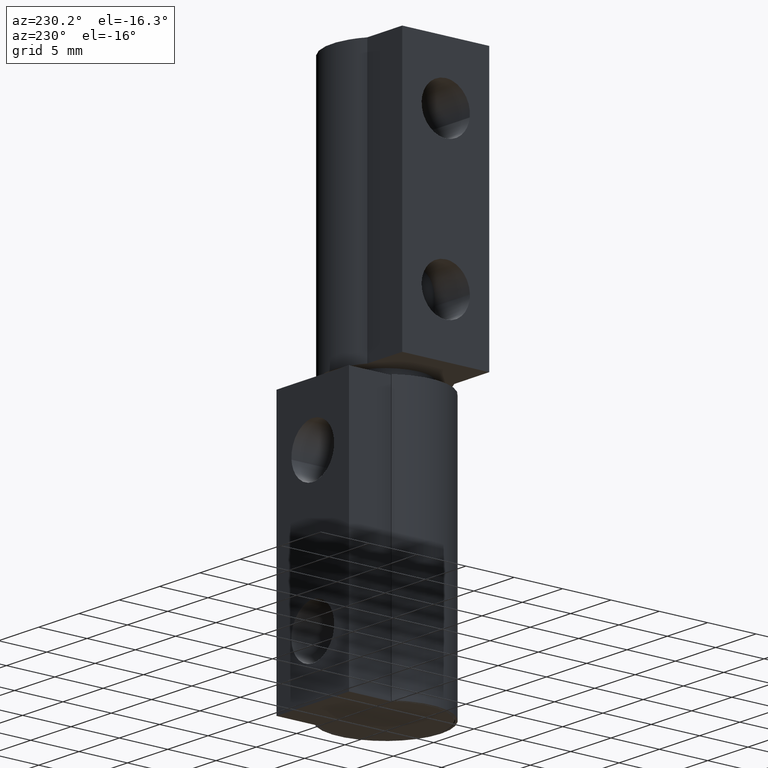
[diagram: clean part render]
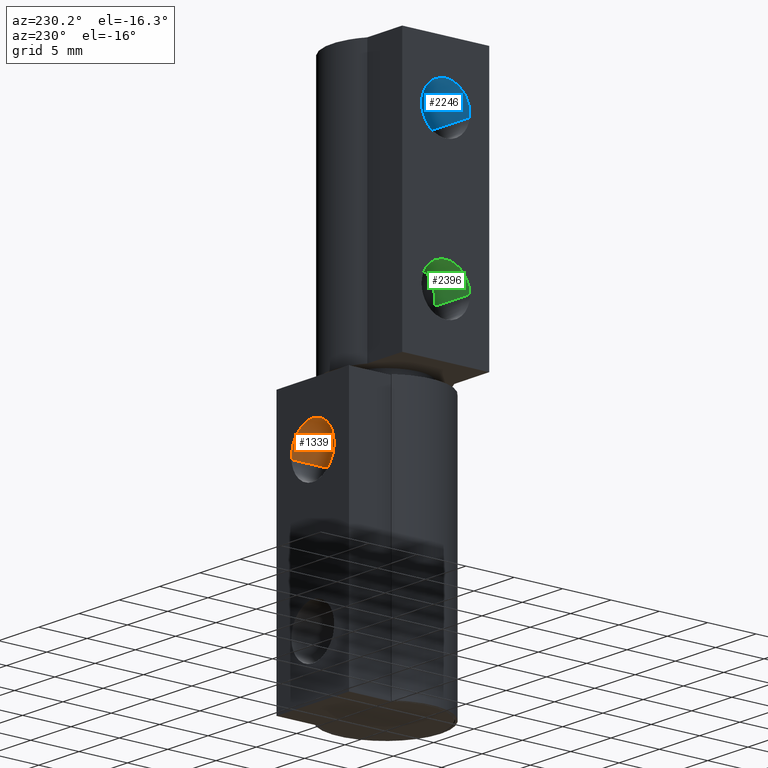
[diagram: same view with three faces highlighted in distinct colors, each labeled with its STEP entity id]
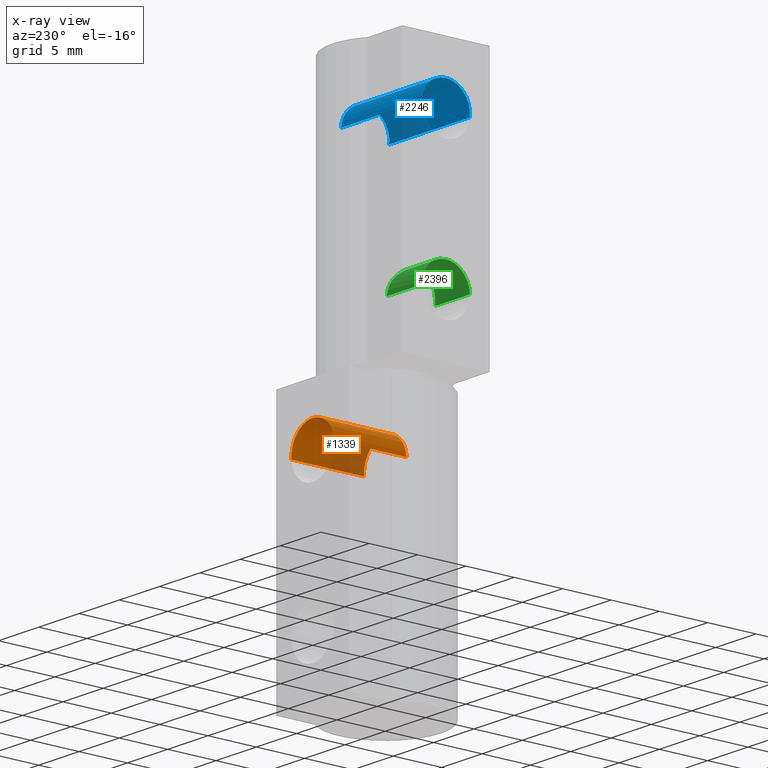
[diagram: x-ray of the same camera — body ghosted, the three highlighted faces saturated]
A machine part, auxiliary view with three faces highlighted in distinct colors.
The next image is the same camera in x-ray (body ghosted, the three faces saturated) — at least one of them is partly hidden behind the body in this view.
Their STEP definitions:

[orange] entity #1339 — the highlighted face is a freeform B-spline surface patch.
#1241=CARTESIAN_POINT('',(-2.641830934392788,-0.187500008905773,21.207917601118439));
#1242=CARTESIAN_POINT('',(-2.433914330713998,-0.187500008905773,23.849748535511228));
#1243=CARTESIAN_POINT('',(0.207916603678791,-0.187500008905773,23.641831931832439));
#1244=CARTESIAN_POINT('',(2.849747538071578,-0.187500008905773,23.433915328153656));
#1245=CARTESIAN_POINT('',(2.641830934392788,-0.187500008905773,20.792084393760859));
#1246=CARTESIAN_POINT('',(-2.641830934392788,7.692187865359309,21.207917601118439));
#1247=CARTESIAN_POINT('',(-2.433914330713998,7.692187865359308,23.849748535511228));
#1248=CARTESIAN_POINT('',(0.207916603678791,7.692187865359309,23.641831931832439));
#1249=CARTESIAN_POINT('',(2.849747538071578,7.692187865359308,23.433915328153656));
#1250=CARTESIAN_POINT('',(2.641830934392788,7.692187865359309,20.792084393760859));
#1258=(BOUNDED_SURFACE()B_SPLINE_SURFACE(2,1,((#1241,#1246),(#1242,#1247),(#1243,#1248),(#1244,#1249),(#1245,#1250)),.UNSPECIFIED.,.F.,.F.,.U.)B_SPLINE_SURFACE_WITH_KNOTS((3,2,3),(2,2),(0.0,4.390663761154806,8.781327522309612),(0.0,7.879687874265081),.UNSPECIFIED.)GEOMETRIC_REPRESENTATION_ITEM()RATIONAL_B_SPLINE_SURFACE(((1.0,1.0),(0.707106781186548,0.707106781186548),(1.0,1.0),(0.707106781186548,0.707106781186548),(1.0,1.0)))REPRESENTATION_ITEM('')SURFACE());
#1259=CARTESIAN_POINT('',(0.0,0.0,23.650000997439651));
#1260=VERTEX_POINT('',#1259);
#1261=CARTESIAN_POINT('',(-2.641830934385854,-2.498002E-016,21.207917601206560));
#1262=VERTEX_POINT('',#1261);
#1263=CARTESIAN_POINT('',(0.0,0.0,23.650000997439651));
#1264=CARTESIAN_POINT('',(-2.449634802730323,0.0,23.650000997439651));
#1265=CARTESIAN_POINT('',(-2.641830934385854,-2.498002E-016,21.207917601206560));
#1273=(BOUNDED_CURVE()B_SPLINE_CURVE(2,(#1263,#1264,#1265),.UNSPECIFIED.,.F.,.U.)B_SPLINE_CURVE_WITH_KNOTS((3,3),(0.0,0.236331300621331),.UNSPECIFIED.)CURVE()GEOMETRIC_REPRESENTATION_ITEM()RATIONAL_B_SPLINE_CURVE((1.0,0.723120658618595,0.969723356147949))REPRESENTATION_ITEM(''));
#1274=EDGE_CURVE('',#1260,#1262,#1273,.T.);
#1275=ORIENTED_EDGE('',*,*,#1274,.T.);
#1276=CARTESIAN_POINT('',(-2.641830934385853,7.500000356230891,21.207917601206560));
#1277=VERTEX_POINT('',#1276);
#1278=CARTESIAN_POINT('',(-2.641830934385854,-2.498002E-016,21.207917601206560));
#1279=CARTESIAN_POINT('',(-2.641830934385853,7.500000356230891,21.207917601206560));
#1280=QUASI_UNIFORM_CURVE('',1,(#1278,#1279),.UNSPECIFIED.,.F.,.U.);
#1281=EDGE_CURVE('',#1262,#1277,#1280,.T.);
#1282=ORIENTED_EDGE('',*,*,#1281,.T.);
#1283=CARTESIAN_POINT('',(0.0,7.500000356230890,23.650000997439651));
#1284=VERTEX_POINT('',#1283);
#1285=CARTESIAN_POINT('',(0.0,7.500000356230890,23.650000997439651));
#1286=CARTESIAN_POINT('',(-2.449634802730322,7.500000356230891,23.650000997439648));
#1287=CARTESIAN_POINT('',(-2.641830934385853,7.500000356230891,21.207917601206564));
#1295=(BOUNDED_CURVE()B_SPLINE_CURVE(2,(#1285,#1286,#1287),.UNSPECIFIED.,.F.,.U.)B_SPLINE_CURVE_WITH_KNOTS((3,3),(0.0,0.236331300621331),.UNSPECIFIED.)CURVE()GEOMETRIC_REPRESENTATION_ITEM()RATIONAL_B_SPLINE_CURVE((1.0,0.723120658618595,0.969723356147949))REPRESENTATION_ITEM(''));
#1296=EDGE_CURVE('',#1284,#1277,#1295,.T.);
#1297=ORIENTED_EDGE('',*,*,#1296,.F.);
#1298=CARTESIAN_POINT('',(2.641830934385853,7.500000356230890,20.792084393672742));
#1299=VERTEX_POINT('',#1298);
#1300=CARTESIAN_POINT('',(2.641830934385853,7.500000356230891,20.792084393672738));
#1301=CARTESIAN_POINT('',(2.650000000000000,7.500000356230890,20.895882213780798));
#1302=CARTESIAN_POINT('',(2.650000000000000,7.500000356230890,21.000000997439649));
#1303=CARTESIAN_POINT('',(2.650000000000000,7.500000356230891,23.650000997439651));
#1304=CARTESIAN_POINT('',(0.0,7.500000356230890,23.650000997439651));
#1312=(BOUNDED_CURVE()B_SPLINE_CURVE(2,(#1300,#1301,#1302,#1303,#1304),.UNSPECIFIED.,.F.,.U.)B_SPLINE_CURVE_WITH_KNOTS((3,2,3),(0.736331300621331,0.750000000000000,1.0),.UNSPECIFIED.)CURVE()GEOMETRIC_REPRESENTATION_ITEM()RATIONAL_B_SPLINE_CURVE((0.969723356147949,0.983986122567952,1.0,0.707106781186548,1.0))REPRESENTATION_ITEM(''));
#1313=EDGE_CURVE('',#1299,#1284,#1312,.T.);
#1314=ORIENTED_EDGE('',*,*,#1313,.F.);
#1315=CARTESIAN_POINT('',(2.641830934385853,-2.498002E-016,20.792084393672742));
#1316=VERTEX_POINT('',#1315);
#1317=CARTESIAN_POINT('',(2.641830934385853,-2.498002E-016,20.792084393672742));
#1318=CARTESIAN_POINT('',(2.641830934385853,7.500000356230890,20.792084393672742));
#1319=QUASI_UNIFORM_CURVE('',1,(#1317,#1318),.UNSPECIFIED.,.F.,.U.);
#1320=EDGE_CURVE('',#1316,#1299,#1319,.T.);
#1321=ORIENTED_EDGE('',*,*,#1320,.F.);
#1322=CARTESIAN_POINT('',(2.641830934385853,-2.498002E-016,20.792084393672742));
#1323=CARTESIAN_POINT('',(2.650000000000000,0.0,20.895882213780794));
#1324=CARTESIAN_POINT('',(2.650000000000000,0.0,21.000000997439649));
#1325=CARTESIAN_POINT('',(2.650000000000000,0.0,23.650000997439651));
#1326=CARTESIAN_POINT('',(0.0,0.0,23.650000997439651));
#1334=(BOUNDED_CURVE()B_SPLINE_CURVE(2,(#1322,#1323,#1324,#1325,#1326),.UNSPECIFIED.,.F.,.U.)B_SPLINE_CURVE_WITH_KNOTS((3,2,3),(0.736331300621331,0.750000000000000,1.0),.UNSPECIFIED.)CURVE()GEOMETRIC_REPRESENTATION_ITEM()RATIONAL_B_SPLINE_CURVE((0.969723356147949,0.983986122567953,1.0,0.707106781186548,1.0))REPRESENTATION_ITEM(''));
#1335=EDGE_CURVE('',#1316,#1260,#1334,.T.);
#1336=ORIENTED_EDGE('',*,*,#1335,.T.);
#1337=EDGE_LOOP('',(#1275,#1282,#1297,#1314,#1321,#1336));
#1338=FACE_OUTER_BOUND('',#1337,.T.);
#1339=ADVANCED_FACE('',(#1338),#1258,.F.);

[blue] entity #2246 — the highlighted face is a freeform B-spline surface patch.
#2144=CARTESIAN_POINT('',(2.749999768769136,-2.482561998383750,48.704916740721103));
#2145=CARTESIAN_POINT('',(2.749999768769137,-2.491007221096098,48.775965505768070));
#2146=CARTESIAN_POINT('',(2.749999768769136,-2.495375178529250,48.847380978525862));
#2147=CARTESIAN_POINT('',(2.749999768769136,-2.647996527366392,51.342717974580516));
#2148=CARTESIAN_POINT('',(2.749999768769136,-0.152659531311725,51.495339323417667));
#2149=CARTESIAN_POINT('',(2.749999768769136,2.342677464742941,51.647960672254811));
#2150=CARTESIAN_POINT('',(2.749999768769136,2.495298813580084,49.152623676200143));
#2151=CARTESIAN_POINT('',(-7.756250231230871,-2.482561998383750,48.704916740721103));
#2152=CARTESIAN_POINT('',(-7.756250231230869,-2.491007221096098,48.775965505768070));
#2153=CARTESIAN_POINT('',(-7.756250231230869,-2.495375178529250,48.847380978525862));
#2154=CARTESIAN_POINT('',(-7.756250231230869,-2.647996527366392,51.342717974580516));
#2155=CARTESIAN_POINT('',(-7.756250231230869,-0.152659531311725,51.495339323417667));
#2156=CARTESIAN_POINT('',(-7.756250231230869,2.342677464742941,51.647960672254811));
#2157=CARTESIAN_POINT('',(-7.756250231230869,2.495298813580084,49.152623676200143));
#2165=(BOUNDED_SURFACE()B_SPLINE_SURFACE(2,1,((#2144,#2151),(#2145,#2152),(#2146,#2153),(#2147,#2154),(#2148,#2155),(#2149,#2156),(#2150,#2157)),.UNSPECIFIED.,.F.,.F.,.U.)B_SPLINE_SURFACE_WITH_KNOTS((3,2,2,3),(2,2),(0.0,0.165685424949238,4.307821048680194,8.449956672411149),(0.0,10.506250000000010),.UNSPECIFIED.)GEOMETRIC_REPRESENTATION_ITEM()RATIONAL_B_SPLINE_SURFACE(((0.977505800795127,0.977505800795127),(0.988284271247462,0.988284271247462),(1.0,1.0),(0.707106781186548,0.707106781186548),(1.0,1.0),(0.707106781186548,0.707106781186548),(1.0,1.0)))REPRESENTATION_ITEM('')SURFACE());
#2166=CARTESIAN_POINT('',(2.499999768769135,-2.482561998375129,48.704916740648592));
#2167=VERTEX_POINT('',#2166);
#2168=CARTESIAN_POINT('',(2.499999768769135,-0.000038182474583,51.500002327362999));
#2169=VERTEX_POINT('',#2168);
#2170=CARTESIAN_POINT('',(2.499999768769136,-2.482561998375129,48.704916740648585));
#2171=CARTESIAN_POINT('',(2.499999768769135,-2.500038182474583,48.851942028159939));
#2172=CARTESIAN_POINT('',(2.499999768769135,-2.500038182474583,49.000002327362999));
#2173=CARTESIAN_POINT('',(2.499999768769136,-2.500038182474583,51.500002327363006));
#2174=CARTESIAN_POINT('',(2.499999768769135,-0.000038182474583,51.500002327362999));
#2182=(BOUNDED_CURVE()B_SPLINE_CURVE(2,(#2170,#2171,#2172,#2173,#2174),.UNSPECIFIED.,.F.,.U.)B_SPLINE_CURVE_WITH_KNOTS((3,2,3),(0.229562473505770,0.250000000000000,0.500000000000000),.UNSPECIFIED.)CURVE()GEOMETRIC_REPRESENTATION_ITEM()RATIONAL_B_SPLINE_CURVE((0.956026754168532,0.976055948322079,1.0,0.707106781186548,1.0))REPRESENTATION_ITEM(''));
#2183=EDGE_CURVE('',#2167,#2169,#2182,.T.);
#2184=ORIENTED_EDGE('',*,*,#2183,.F.);
#2185=CARTESIAN_POINT('',(-7.500000231230869,-2.482561998375129,48.704916740648592));
#2186=VERTEX_POINT('',#2185);
#2187=CARTESIAN_POINT('',(2.499999768769135,-2.482561998375129,48.704916740648592));
#2188=CARTESIAN_POINT('',(-7.500000231230869,-2.482561998375129,48.704916740648592));
#2189=QUASI_UNIFORM_CURVE('',1,(#2187,#2188),.UNSPECIFIED.,.F.,.U.);
#2190=EDGE_CURVE('',#2167,#2186,#2189,.T.);
#2191=ORIENTED_EDGE('',*,*,#2190,.T.);
#2192=CARTESIAN_POINT('',(-7.500000231230869,-0.000038182474583,51.500002327362999));
#2193=VERTEX_POINT('',#2192);
#2194=CARTESIAN_POINT('',(-7.500000231230869,-2.482561998375129,48.704916740648578));
#2195=CARTESIAN_POINT('',(-7.500000231230869,-2.500038182474584,48.851942028159939));
#2196=CARTESIAN_POINT('',(-7.500000231230869,-2.500038182474583,49.000002327362999));
#2197=CARTESIAN_POINT('',(-7.500000231230868,-2.500038182474583,51.500002327363006));
#2198=CARTESIAN_POINT('',(-7.500000231230869,-0.000038182474583,51.500002327362999));
#2206=(BOUNDED_CURVE()B_SPLINE_CURVE(2,(#2194,#2195,#2196,#2197,#2198),.UNSPECIFIED.,.F.,.U.)B_SPLINE_CURVE_WITH_KNOTS((3,2,3),(0.229562473505770,0.250000000000000,0.500000000000000),.UNSPECIFIED.)CURVE()GEOMETRIC_REPRESENTATION_ITEM()RATIONAL_B_SPLINE_CURVE((0.956026754168533,0.976055948322080,1.0,0.707106781186548,1.0))REPRESENTATION_ITEM(''));
#2207=EDGE_CURVE('',#2186,#2193,#2206,.T.);
#2208=ORIENTED_EDGE('',*,*,#2207,.T.);
#2209=CARTESIAN_POINT('',(-7.500000231230869,2.495298813570860,49.152623676350963));
#2210=VERTEX_POINT('',#2209);
#2211=CARTESIAN_POINT('',(-7.500000231230869,-0.000038182474583,51.500002327362999));
#2212=CARTESIAN_POINT('',(-7.500000231230869,2.351726984504866,51.500002327362992));
#2213=CARTESIAN_POINT('',(-7.500000231230869,2.495298813570861,49.152623676350963));
#2221=(BOUNDED_CURVE()B_SPLINE_CURVE(2,(#2211,#2212,#2213),.UNSPECIFIED.,.F.,.U.)B_SPLINE_CURVE_WITH_KNOTS((3,3),(0.500000000000000,0.739332962221113),.UNSPECIFIED.)CURVE()GEOMETRIC_REPRESENTATION_ITEM()RATIONAL_B_SPLINE_CURVE((1.0,0.719603993307600,0.976072041628504))REPRESENTATION_ITEM(''));
#2222=EDGE_CURVE('',#2193,#2210,#2221,.T.);
#2223=ORIENTED_EDGE('',*,*,#2222,.T.);
#2224=CARTESIAN_POINT('',(2.499999768769135,2.495298813570860,49.152623676350963));
#2225=VERTEX_POINT('',#2224);
#2226=CARTESIAN_POINT('',(2.499999768769135,2.495298813570860,49.152623676350963));
#2227=CARTESIAN_POINT('',(-7.500000231230869,2.495298813570860,49.152623676350963));
#2228=QUASI_UNIFORM_CURVE('',1,(#2226,#2227),.UNSPECIFIED.,.F.,.U.);
#2229=EDGE_CURVE('',#2225,#2210,#2228,.T.);
#2230=ORIENTED_EDGE('',*,*,#2229,.F.);
#2231=CARTESIAN_POINT('',(2.499999768769135,-0.000038182474583,51.500002327362999));
#2232=CARTESIAN_POINT('',(2.499999768769134,2.351726984504866,51.500002327362992));
#2233=CARTESIAN_POINT('',(2.499999768769136,2.495298813570861,49.152623676350963));
#2241=(BOUNDED_CURVE()B_SPLINE_CURVE(2,(#2231,#2232,#2233),.UNSPECIFIED.,.F.,.U.)B_SPLINE_CURVE_WITH_KNOTS((3,3),(0.500000000000000,0.739332962221113),.UNSPECIFIED.)CURVE()GEOMETRIC_REPRESENTATION_ITEM()RATIONAL_B_SPLINE_CURVE((1.0,0.719603993307600,0.976072041628504))REPRESENTATION_ITEM(''));
#2242=EDGE_CURVE('',#2169,#2225,#2241,.T.);
#2243=ORIENTED_EDGE('',*,*,#2242,.F.);
#2244=EDGE_LOOP('',(#2184,#2191,#2208,#2223,#2230,#2243));
#2245=FACE_OUTER_BOUND('',#2244,.T.);
#2246=ADVANCED_FACE('',(#2245),#2165,.F.);

[green] entity #2396 — the highlighted face is a freeform B-spline surface patch.
#1987=CARTESIAN_POINT('',(-3.187002784836064,2.499104689296310,33.934559968137172));
#1988=VERTEX_POINT('',#1987);
#2022=CARTESIAN_POINT('',(-3.186946049509110,-2.499180437548762,34.065444609893049));
#2023=VERTEX_POINT('',#2022);
#2063=CARTESIAN_POINT('',(-4.049999999820012,-0.000038182474581,36.500002327362999));
#2064=VERTEX_POINT('',#2063);
#2065=CARTESIAN_POINT('',(-4.049999999820012,-0.000038182474581,36.500002327362999));
#2066=CARTESIAN_POINT('',(-4.049998509802792,-0.169928168180444,36.500002325982507));
#2067=CARTESIAN_POINT('',(-4.039359150000169,-0.336198359740018,36.482871311699760));
#2068=CARTESIAN_POINT('',(-4.009012727810992,-0.580566979298215,36.433086163369843));
#2069=CARTESIAN_POINT('',(-3.996489822460951,-0.661177726384365,36.412442923393478));
#2070=CARTESIAN_POINT('',(-3.966803409316882,-0.820706298996053,36.362940981705222));
#2071=CARTESIAN_POINT('',(-3.949878105776212,-0.898330648448370,36.334475957806987));
#2072=CARTESIAN_POINT('',(-3.893875396574901,-1.124436779260122,36.238866525945021));
#2073=CARTESIAN_POINT('',(-3.849505477792553,-1.266601958108499,36.161501069874383));
#2074=CARTESIAN_POINT('',(-3.775287385465812,-1.467934719438934,36.025303752178147));
#2075=CARTESIAN_POINT('',(-3.749558036173027,-1.532251347758434,35.977041712221023));
#2076=CARTESIAN_POINT('',(-3.696953427216849,-1.655148424236541,35.875361564504772));
#2077=CARTESIAN_POINT('',(-3.670041046450113,-1.713823698886732,35.821878297429969));
#2078=CARTESIAN_POINT('',(-3.615606537661341,-1.825865158255103,35.709578004028288));
#2079=CARTESIAN_POINT('',(-3.588082547573704,-1.879231196863270,35.650761735661703));
#2080=CARTESIAN_POINT('',(-3.546830866499731,-1.955336310201288,35.558336155007147));
#2081=CARTESIAN_POINT('',(-3.533053675450608,-1.980102488808940,35.526746386269302));
#2082=CARTESIAN_POINT('',(-3.505821911451695,-2.027926888721423,35.462626556172943));
#2083=CARTESIAN_POINT('',(-3.492358475887103,-2.051005051129687,35.430080869338589));
#2084=CARTESIAN_POINT('',(-3.426026672447546,-2.162314969967441,35.264895557709671));
#2085=CARTESIAN_POINT('',(-3.376047115298407,-2.238461849450499,35.124990066205029));
#2086=CARTESIAN_POINT('',(-3.310652668167940,-2.333146418982781,34.901747019181450));
#2087=CARTESIAN_POINT('',(-3.290462947829369,-2.361422273731554,34.825082163689210));
#2088=CARTESIAN_POINT('',(-3.254353769266124,-2.410942582138402,34.666659546329100));
#2089=CARTESIAN_POINT('',(-3.238792222241626,-2.431705530817200,34.586414547596092));
#2090=CARTESIAN_POINT('',(-3.213349152742157,-2.465229204403417,34.423934971856077));
#2091=CARTESIAN_POINT('',(-3.203462376069894,-2.477998104176117,34.341674800402437));
#2092=CARTESIAN_POINT('',(-3.193360046981994,-2.490985317215519,34.216664757281428));
#2093=CARTESIAN_POINT('',(-3.190780329308039,-2.494284541375023,34.174724450995207));
#2094=CARTESIAN_POINT('',(-3.188100555729600,-2.497707714134700,34.110228335505532));
#2095=CARTESIAN_POINT('',(-3.187406067524686,-2.498593816455807,34.087840279364819));
#2096=CARTESIAN_POINT('',(-3.186946049509110,-2.499180437548762,34.065444609893049));
#2097=B_SPLINE_CURVE_WITH_KNOTS('',3,(#2065,#2066,#2067,#2068,#2069,#2070,#2071,#2072,#2073,#2074,#2075,#2076,#2077,#2078,#2079,#2080,#2081,#2082,#2083,#2084,#2085,#2086,#2087,#2088,#2089,#2090,#2091,#2092,#2093,#2094,#2095,#2096),.UNSPECIFIED.,.F.,.U.,(4,2,2,2,2,2,2,2,2,2,2,2,2,2,2,4),(0.0,0.031249999999997,0.046874999999996,0.062499999999995,0.093749999999991,0.109374999999989,0.124999999999988,0.140624999999986,0.148437499999986,0.156249999999986,0.187499999999984,0.203124999999983,0.218749999999982,0.234374999999981,0.242187499999981,0.246309505517204),.UNSPECIFIED.);
#2098=EDGE_CURVE('',#2064,#2023,#2097,.T.);
#2100=CARTESIAN_POINT('',(-3.187002784836064,2.499104689296310,33.934559968137172));
#2101=CARTESIAN_POINT('',(-3.186590753451759,2.499628886675789,33.954579686988083));
#2102=CARTESIAN_POINT('',(-3.186367598307317,2.499912304766584,33.974578592902567));
#2103=CARTESIAN_POINT('',(-3.186189739939112,2.500138995193154,34.078494592624317));
#2104=CARTESIAN_POINT('',(-3.189368760139254,2.496104052752028,34.162127103871832));
#2105=CARTESIAN_POINT('',(-3.198968110195803,2.483773371813463,34.287113435116140));
#2106=CARTESIAN_POINT('',(-3.202972123127988,2.478614765009142,34.328698412656117));
#2107=CARTESIAN_POINT('',(-3.212552781409634,2.466184543280076,34.411714626824697));
#2108=CARTESIAN_POINT('',(-3.218146467248490,2.458890475994885,34.453253948743800));
#2109=CARTESIAN_POINT('',(-3.249740942240053,2.417318499900016,34.659290993886358));
#2110=CARTESIAN_POINT('',(-3.286082142397778,2.368556297123080,34.816336257839737));
#2111=CARTESIAN_POINT('',(-3.351639639069143,2.273870142428367,35.042116118483762));
#2112=CARTESIAN_POINT('',(-3.375458557860552,2.238497417506061,35.116019882897859));
#2113=CARTESIAN_POINT('',(-3.425142064411063,2.161710665796244,35.258326106699002));
#2114=CARTESIAN_POINT('',(-3.451053442282058,2.120239608080027,35.326953048669353));
#2115=CARTESIAN_POINT('',(-3.504177241914837,2.031237975817783,35.459554756927481));
#2116=CARTESIAN_POINT('',(-3.531391678067550,1.983706858540298,35.523528348487012));
#2117=CARTESIAN_POINT('',(-3.586396145914356,1.882440641591445,35.647014592568119));
#2118=CARTESIAN_POINT('',(-3.614312184682980,1.828436454156315,35.706774416280361));
#2119=CARTESIAN_POINT('',(-3.696625982298009,1.659272758753537,35.876767907173083));
#2120=CARTESIAN_POINT('',(-3.749755358115303,1.536837021915729,35.978325346459123));
#2121=CARTESIAN_POINT('',(-3.823359607544652,1.337695642067846,36.113507722462309));
#2122=CARTESIAN_POINT('',(-3.846883433377809,1.268714567652374,36.155682068868572));
#2123=CARTESIAN_POINT('',(-3.880201297664341,1.161012528203995,36.214417243194461));
#2124=CARTESIAN_POINT('',(-3.890998888619119,1.124322327916123,36.233273300649351));
#2125=CARTESIAN_POINT('',(-3.911607716191387,1.050379989774157,36.268990529372658));
#2126=CARTESIAN_POINT('',(-3.921449809313147,1.013035861626421,36.285906762123993));
#2127=CARTESIAN_POINT('',(-3.968243510880424,0.824443849397035,36.365816994275782));
#2128=CARTESIAN_POINT('',(-3.997978342557039,0.667635661584707,36.414953869724300));
#2129=CARTESIAN_POINT('',(-4.023590917846004,0.463581587844125,36.456990914168870));
#2130=CARTESIAN_POINT('',(-4.028133177114473,0.422365082752703,36.464419165369492));
#2131=CARTESIAN_POINT('',(-4.035996449539281,0.339089685784375,36.477252245900637));
#2132=CARTESIAN_POINT('',(-4.039323685174967,0.296914135573379,36.482667186797379));
#2133=CARTESIAN_POINT('',(-4.044649675124904,0.212374299364995,36.491324550806453));
#2134=CARTESIAN_POINT('',(-4.046652700760278,0.170016020121504,36.494574036682593));
#2135=CARTESIAN_POINT('',(-4.049328059215642,0.085122244550241,36.498912919286447));
#2136=CARTESIAN_POINT('',(-4.050000400240921,0.042434305235420,36.500002327362999));
#2137=CARTESIAN_POINT('',(-4.049999999820012,-0.000038182474581,36.500002327363013));
#2138=B_SPLINE_CURVE_WITH_KNOTS('',3,(#2100,#2101,#2102,#2103,#2104,#2105,#2106,#2107,#2108,#2109,#2110,#2111,#2112,#2113,#2114,#2115,#2116,#2117,#2118,#2119,#2120,#2121,#2122,#2123,#2124,#2125,#2126,#2127,#2128,#2129,#2130,#2131,#2132,#2133,#2134,#2135,#2136,#2137),.UNSPECIFIED.,.F.,.U.,(4,2,2,2,2,2,2,2,2,2,2,2,2,2,2,2,2,2,4),(0.746282940411719,0.750000000000023,0.765625000000024,0.773437500000023,0.781250000000023,0.812500000000021,0.828125000000019,0.843750000000018,0.859375000000016,0.875000000000015,0.906250000000013,0.921875000000011,0.929687500000010,0.937500000000009,0.968750000000004,0.976562500000003,0.984375000000002,0.992187500000001,1.0),.UNSPECIFIED.);
#2139=EDGE_CURVE('',#1988,#2064,#2138,.T.);
#2330=CARTESIAN_POINT('',(-3.078428719125577,-2.499181494913475,34.065444698132680));
#2331=CARTESIAN_POINT('',(-3.078428719125577,-2.433739124143793,36.564588010571569));
#2332=CARTESIAN_POINT('',(-3.078428719125577,0.065404188295100,36.499145639801888));
#2333=CARTESIAN_POINT('',(-3.078428719125577,2.564547500733993,36.433703269032208));
#2334=CARTESIAN_POINT('',(-3.078428719125577,2.499105129964309,33.934559956593318));
#2335=CARTESIAN_POINT('',(-7.610539519033503,-2.499181494913475,34.065444698132680));
#2336=CARTESIAN_POINT('',(-7.610539519033503,-2.433739124143793,36.564588010571569));
#2337=CARTESIAN_POINT('',(-7.610539519033503,0.065404188295100,36.499145639801888));
#2338=CARTESIAN_POINT('',(-7.610539519033503,2.564547500733993,36.433703269032208));
#2339=CARTESIAN_POINT('',(-7.610539519033503,2.499105129964309,33.934559956593318));
#2347=(BOUNDED_SURFACE()B_SPLINE_SURFACE(2,1,((#2330,#2335),(#2331,#2336),(#2332,#2337),(#2333,#2338),(#2334,#2339)),.UNSPECIFIED.,.F.,.F.,.U.)B_SPLINE_SURFACE_WITH_KNOTS((3,2,3),(2,2),(0.0,4.142135623730950,8.284271247461900),(0.0,4.532110799907927),.UNSPECIFIED.)GEOMETRIC_REPRESENTATION_ITEM()RATIONAL_B_SPLINE_SURFACE(((1.0,1.0),(0.707106781186548,0.707106781186548),(1.0,1.0),(0.707106781186548,0.707106781186548),(1.0,1.0)))REPRESENTATION_ITEM('')SURFACE());
#2348=ORIENTED_EDGE('',*,*,#2098,.T.);
#2349=CARTESIAN_POINT('',(-7.500000231230868,-2.499181494908756,34.065444698312909));
#2350=VERTEX_POINT('',#2349);
#2351=CARTESIAN_POINT('',(-3.186946049509110,-2.499180437548762,34.065444609893049));
#2352=CARTESIAN_POINT('',(-7.500000231230868,-2.499181494908756,34.065444698312909));
#2353=QUASI_UNIFORM_CURVE('',1,(#2351,#2352),.UNSPECIFIED.,.F.,.U.);
#2354=EDGE_CURVE('',#2023,#2350,#2353,.T.);
#2355=ORIENTED_EDGE('',*,*,#2354,.T.);
#2356=CARTESIAN_POINT('',(-7.500000231230869,-0.000038182474583,36.500002327362999));
#2357=VERTEX_POINT('',#2356);
#2358=CARTESIAN_POINT('',(-7.500000231230868,-2.499181494908756,34.065444698312909));
#2359=CARTESIAN_POINT('',(-7.500000231230870,-2.435430359427397,36.500002327363013));
#2360=CARTESIAN_POINT('',(-7.500000231230869,-0.000038182474583,36.500002327362999));
#2368=(BOUNDED_CURVE()B_SPLINE_CURVE(2,(#2358,#2359,#2360),.UNSPECIFIED.,.F.,.U.)B_SPLINE_CURVE_WITH_KNOTS((3,3),(0.254603306684232,0.500000000000000),.UNSPECIFIED.)CURVE()GEOMETRIC_REPRESENTATION_ITEM()RATIONAL_B_SPLINE_CURVE((0.989412390591350,0.712499890434268,1.0))REPRESENTATION_ITEM(''));
#2369=EDGE_CURVE('',#2350,#2357,#2368,.T.);
#2370=ORIENTED_EDGE('',*,*,#2369,.T.);
#2371=CARTESIAN_POINT('',(-7.500000231230868,2.499105129959590,33.934559956413082));
#2372=VERTEX_POINT('',#2371);
#2373=CARTESIAN_POINT('',(-7.500000231230869,-0.000038182474583,36.500002327362999));
#2374=CARTESIAN_POINT('',(-7.500000231230868,2.499961817525417,36.500002327363006));
#2375=CARTESIAN_POINT('',(-7.500000231230869,2.499961817525417,34.000002327362999));
#2376=CARTESIAN_POINT('',(-7.500000231230869,2.499961817525417,33.967275534470595));
#2377=CARTESIAN_POINT('',(-7.500000231230868,2.499105129959590,33.934559956413082));
#2385=(BOUNDED_CURVE()B_SPLINE_CURVE(2,(#2373,#2374,#2375,#2376,#2377),.UNSPECIFIED.,.F.,.U.)B_SPLINE_CURVE_WITH_KNOTS((3,2,3),(0.500000000000000,0.750000000000000,0.754603306684231),.UNSPECIFIED.)CURVE()GEOMETRIC_REPRESENTATION_ITEM()RATIONAL_B_SPLINE_CURVE((1.0,0.707106781186548,1.0,0.994606890752280,0.989412390591351))REPRESENTATION_ITEM(''));
#2386=EDGE_CURVE('',#2357,#2372,#2385,.T.);
#2387=ORIENTED_EDGE('',*,*,#2386,.T.);
#2388=CARTESIAN_POINT('',(-3.187002784836064,2.499104689296310,33.934559968137172));
#2389=CARTESIAN_POINT('',(-7.500000231230868,2.499105129959590,33.934559956413082));
#2390=QUASI_UNIFORM_CURVE('',1,(#2388,#2389),.UNSPECIFIED.,.F.,.U.);
#2391=EDGE_CURVE('',#1988,#2372,#2390,.T.);
#2392=ORIENTED_EDGE('',*,*,#2391,.F.);
#2393=ORIENTED_EDGE('',*,*,#2139,.T.);
#2394=EDGE_LOOP('',(#2348,#2355,#2370,#2387,#2392,#2393));
#2395=FACE_OUTER_BOUND('',#2394,.T.);
#2396=ADVANCED_FACE('',(#2395),#2347,.F.);